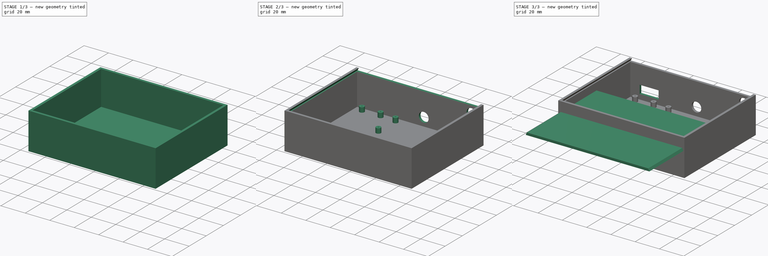
[diagram: build sequence overview — one tinted view per stage of 3, left to right]
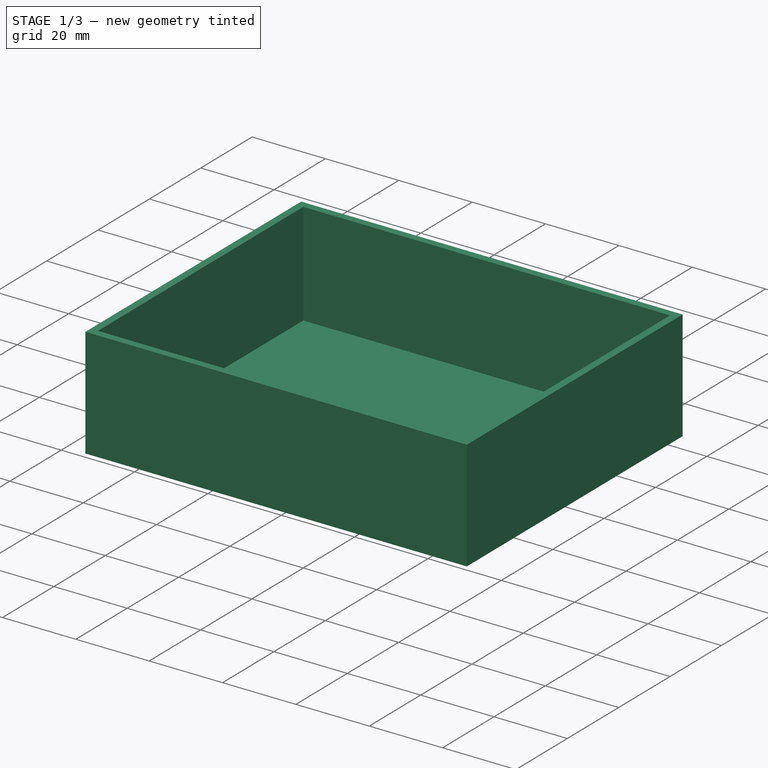
[diagram: stage 1 of 3 — iso view after this stage's code; geometry added in this stage tinted green]
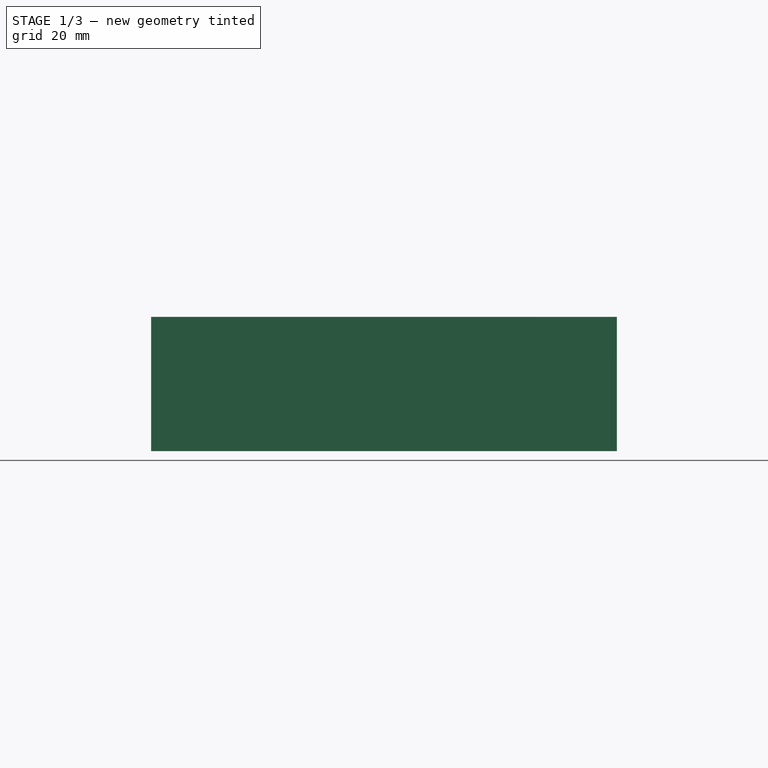
[diagram: stage 1 of 3 — front view after this stage's code; geometry added in this stage tinted green]
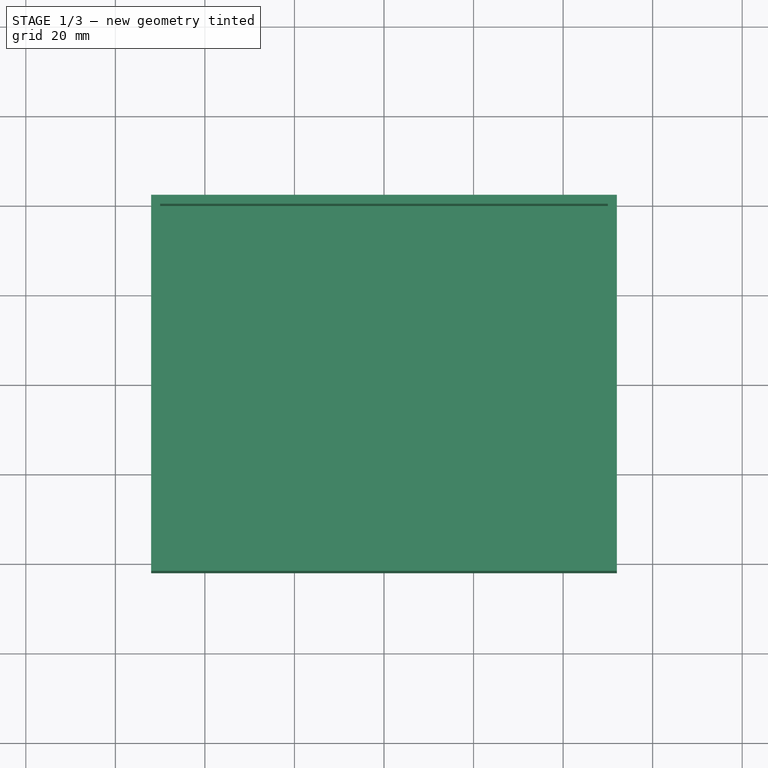
[diagram: stage 1 of 3 — top view after this stage's code; geometry added in this stage tinted green]
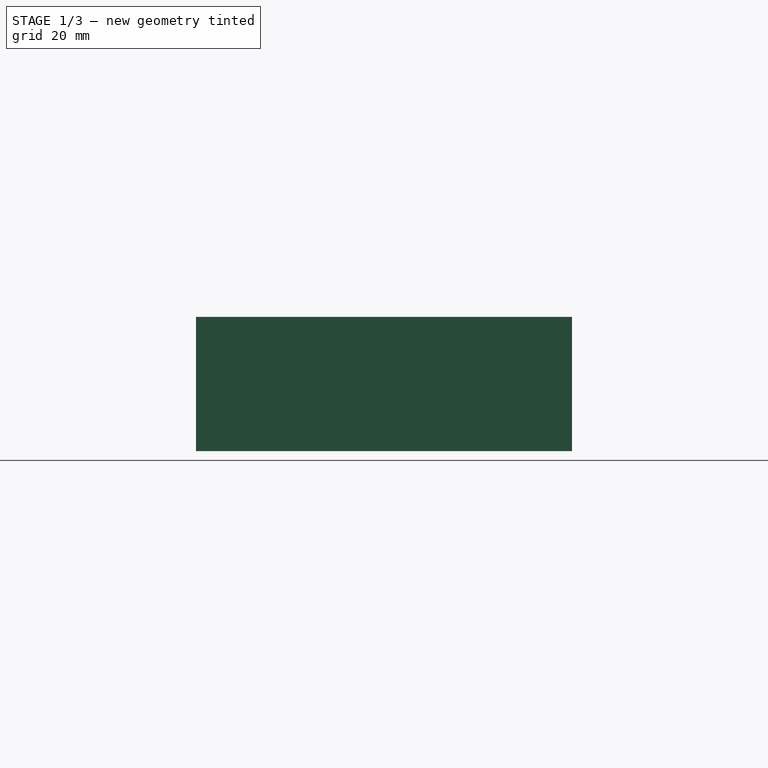
[diagram: stage 1 of 3 — right view after this stage's code; geometry added in this stage tinted green]
FCSTD DOCUMENT  (FreeCAD 0.21R33675 (Git))
Label: sousvide
License: All rights reserved
LicenseURL: https://en.wikipedia.org/wiki/All_rights_reserved
objects: Sketcher::SketchObject×7, PartDesign::Pocket×4, PartDesign::Pad×3, PartDesign::Body×2
note: 23 computed .brp shape members not serialized (recipe doc carries the construction recipe); baked Part::Feature solids carry a one-line shape summary decoded from their .brp

FEATURE [Sketcher::SketchObject] Sketch001
  FullyConstrained = true
  sketch-geometry (6):
    g0: LineSegment StartX=52 StartY=-42 StartZ=0 EndX=52 EndY=42 EndZ=0
    g1: LineSegment StartX=52 StartY=42 StartZ=0 EndX=-52 EndY=42 EndZ=0
    g2: LineSegment StartX=-52 StartY=42 StartZ=0 EndX=-52 EndY=-42 EndZ=0
    g3: LineSegment StartX=-52 StartY=-42 StartZ=0 EndX=52 EndY=-42 EndZ=0
    g4: GeomPoint X=0 Y=0 Z=0
    g5: GeomPoint X=0 Y=0 Z=0
  constraints (13):
    c: Coincident(g0,g1)
    c: Coincident(g1,g2)
    c: Coincident(g2,g3)
    c: Coincident(g3,g0)
    c: Horizontal(g1)
    c: Horizontal(g3)
    c: Vertical(g0)
    c: Vertical(g2)
    c: Symmetric(g1,g0,g4)
    c: Coincident(g4,g-1)
    c: Coincident(g5,g4)
    c: Distance(g1) = 104
    c: Distance(g0) = 84
FEATURE [PartDesign::Pad] Pad001
  Direction = (0,0,1)
  Length = 30
  Length2 = 10
  Profile = -> Sketch001
  ReferenceAxis = -> Sketch001 [N_Axis]
  Type = 0
FEATURE [Sketcher::SketchObject] Sketch
  FullyConstrained = true
  MapMode = 5
  Placement = pos=(0,0,30) rot=(0,0,1;0rad)
  Support = -> [Pad001]
  sketch-geometry (5):
    g0: LineSegment StartX=-50 StartY=-40 StartZ=0 EndX=-50 EndY=40 EndZ=0
    g1: LineSegment StartX=-50 StartY=40 StartZ=0 EndX=50 EndY=40 EndZ=0
    g2: LineSegment StartX=50 StartY=40 StartZ=0 EndX=50 EndY=-40 EndZ=0
    g3: LineSegment StartX=50 StartY=-40 StartZ=0 EndX=-50 EndY=-40 EndZ=0
    g4: GeomPoint X=0 Y=0 Z=0
  constraints (12):
    c: Coincident(g0,g1)
    c: Coincident(g1,g2)
    c: Coincident(g2,g3)
    c: Coincident(g3,g0)
    c: Horizontal(g1)
    c: Horizontal(g3)
    c: Vertical(g0)
    c: Vertical(g2)
    c: Symmetric(g1,g0,g4)
    c: Coincident(g4,g-1)
    c: Distance(g1) = 100
    c: Distance(g2) = 80
FEATURE [PartDesign::Pocket] Pocket
  BaseFeature = -> Pad001
  Direction = (0,0,-1)
  Length = 28
  Length2 = 5
  Profile = -> Sketch
  ReferenceAxis = -> Sketch [N_Axis]
  Type = 0
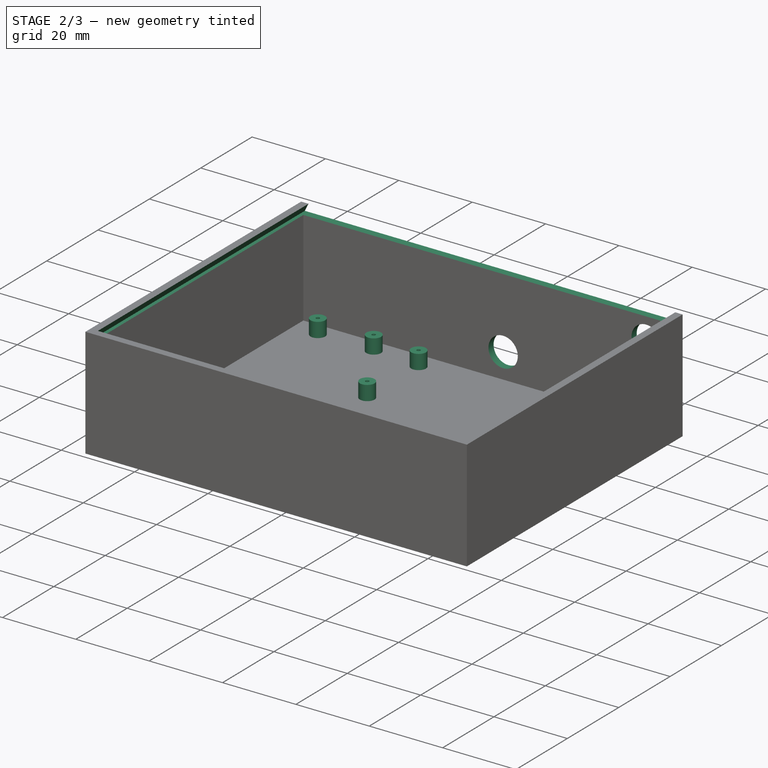
[diagram: stage 2 of 3 — iso view after this stage's code; geometry added in this stage tinted green]
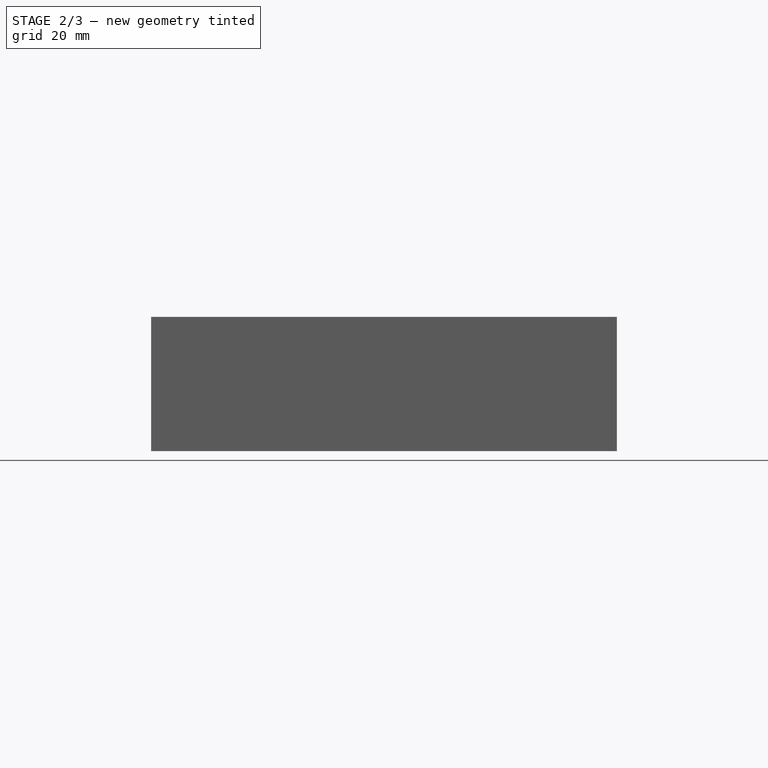
[diagram: stage 2 of 3 — front view after this stage's code; geometry added in this stage tinted green]
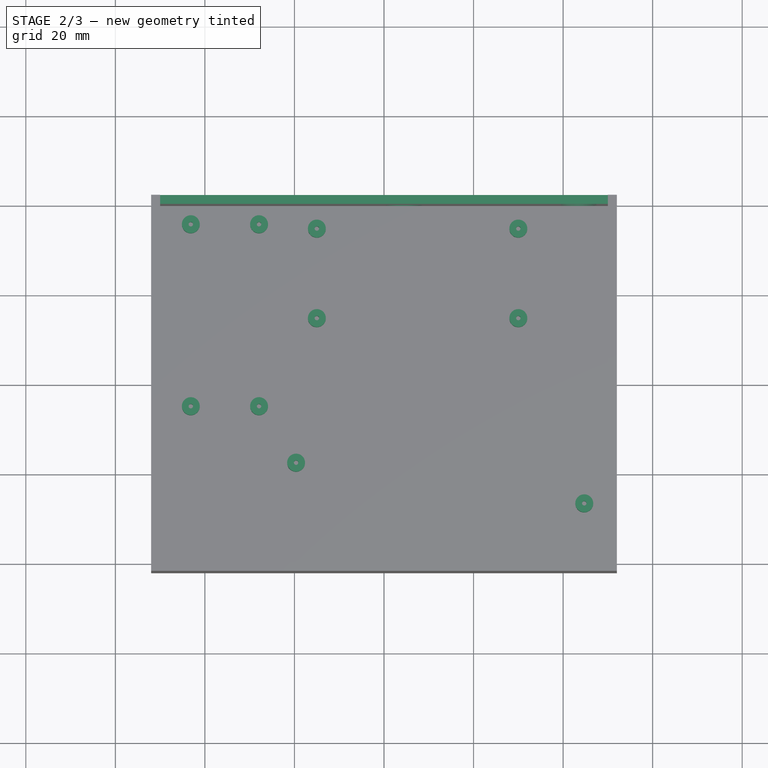
[diagram: stage 2 of 3 — top view after this stage's code; geometry added in this stage tinted green]
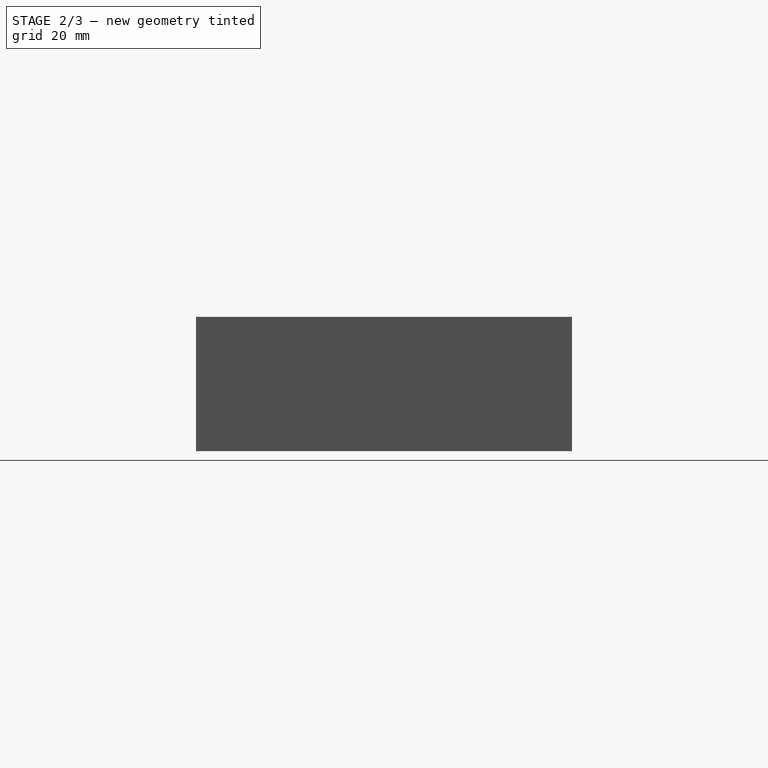
[diagram: stage 2 of 3 — right view after this stage's code; geometry added in this stage tinted green]
FEATURE [Sketcher::SketchObject] Sketch008
  ExternalGeometry = -> [Pocket]
  FullyConstrained = false
  MapMode = 5
  Placement = pos=(0,0,2) rot=(0,0,1;0rad)
  Support = -> [Pocket]
  sketch-geometry (34):
    g0: LineSegment StartX=-15 StartY=34.8884 StartZ=0 EndX=30 EndY=34.8884 EndZ=0
    g1: LineSegment StartX=30 StartY=34.8884 StartZ=0 EndX=30 EndY=14.8884 EndZ=0
    g2: LineSegment StartX=30 StartY=14.8884 StartZ=0 EndX=-15 EndY=14.8884 EndZ=0
    g3: LineSegment StartX=-15 StartY=14.8884 StartZ=0 EndX=-15 EndY=34.8884 EndZ=0
    g4: Circle CenterX=-15 CenterY=34.8884 CenterZ=0 NormalX=0 NormalY=0 NormalZ=1 AngleXU=0 Radius=2
    g5: Circle CenterX=30 CenterY=34.8884 CenterZ=0 NormalX=0 NormalY=0 NormalZ=1 AngleXU=0 Radius=2
    g6: Circle CenterX=30 CenterY=14.8884 CenterZ=0 NormalX=0 NormalY=0 NormalZ=1 AngleXU=0 Radius=2
    g7: Circle CenterX=-15 CenterY=14.8884 CenterZ=0 NormalX=0 NormalY=0 NormalZ=1 AngleXU=0 Radius=2
    g8: Circle CenterX=-15 CenterY=34.8884 CenterZ=0 NormalX=0 NormalY=0 NormalZ=1 AngleXU=0 Radius=0.5
    g9: Circle CenterX=30 CenterY=34.8884 CenterZ=0 NormalX=0 NormalY=0 NormalZ=1 AngleXU=0 Radius=0.5
    g10: Circle CenterX=30 CenterY=14.8884 CenterZ=0 NormalX=0 NormalY=0 NormalZ=1 AngleXU=0 Radius=0.5
    g11: Circle CenterX=-15 CenterY=14.8884 CenterZ=0 NormalX=0 NormalY=0 NormalZ=1 AngleXU=0 Radius=0.5
    g12: LineSegment StartX=-43.15 StartY=35.8562 StartZ=0 EndX=-27.91 EndY=35.8562 EndZ=0
    g13: LineSegment StartX=-27.91 StartY=35.8562 StartZ=0 EndX=-27.91 EndY=-4.7838 EndZ=0
    g14: LineSegment StartX=-27.91 StartY=-4.7838 StartZ=0 EndX=-43.15 EndY=-4.7838 EndZ=0
    g15: LineSegment StartX=-43.15 StartY=-4.7838 StartZ=0 EndX=-43.15 EndY=35.8562 EndZ=0
    g16: Circle CenterX=-43.15 CenterY=35.8562 CenterZ=0 NormalX=0 NormalY=0 NormalZ=1 AngleXU=0 Radius=2
    g17: Circle CenterX=-27.91 CenterY=35.8562 CenterZ=0 NormalX=0 NormalY=0 NormalZ=1 AngleXU=0 Radius=2
    g18: Circle CenterX=-27.91 CenterY=-4.7838 CenterZ=0 NormalX=0 NormalY=0 NormalZ=1 AngleXU=0 Radius=2
    g19: Circle CenterX=-43.15 CenterY=-4.7838 CenterZ=0 NormalX=0 NormalY=0 NormalZ=1 AngleXU=0 Radius=2
    g20: Circle CenterX=-27.91 CenterY=35.8562 CenterZ=0 NormalX=0 NormalY=0 NormalZ=1 AngleXU=0 Radius=0.5
    g21: Circle CenterX=-27.91 CenterY=-4.7838 CenterZ=0 NormalX=0 NormalY=0 NormalZ=1 AngleXU=0 Radius=0.5
    g22: Circle CenterX=-43.15 CenterY=-4.7838 CenterZ=0 NormalX=0 NormalY=0 NormalZ=1 AngleXU=0 Radius=0.5
    g23: Circle CenterX=-43.15 CenterY=35.8562 CenterZ=0 NormalX=0 NormalY=0 NormalZ=1 AngleXU=0 Radius=0.5
    g24: LineSegment StartX=-19.6351 StartY=-7.25325 StartZ=0 EndX=44.7275 EndY=-7.25325 EndZ=0
    g25: LineSegment StartX=44.7275 StartY=-7.25325 StartZ=0 EndX=44.7275 EndY=-37.2533 EndZ=0
    g26: LineSegment StartX=44.7275 StartY=-37.2533 StartZ=0 EndX=-19.6351 EndY=-37.2533 EndZ=0
    g27: LineSegment StartX=-19.6351 StartY=-37.2533 StartZ=0 EndX=-19.6351 EndY=-7.25325 EndZ=0
    g28: LineSegment StartX=30 StartY=25.1855 StartZ=0 EndX=50 EndY=25.1855 EndZ=0
    g29: LineSegment StartX=44.7275 StartY=-26.483 StartZ=0 EndX=-19.6351 EndY=-17.4023 EndZ=0
    g30: Circle CenterX=-19.6351 CenterY=-17.4023 CenterZ=0 NormalX=0 NormalY=0 NormalZ=1 AngleXU=0 Radius=2
    g31: Circle CenterX=-19.6351 CenterY=-17.4023 CenterZ=0 NormalX=0 NormalY=0 NormalZ=1 AngleXU=0 Radius=0.5
    g32: Circle CenterX=44.7275 CenterY=-26.483 CenterZ=0 NormalX=0 NormalY=0 NormalZ=1 AngleXU=0 Radius=2
    g33: Circle CenterX=44.7275 CenterY=-26.483 CenterZ=0 NormalX=0 NormalY=0 NormalZ=1 AngleXU=0 Radius=0.5
  constraints (69):
    c: Coincident(g0,g1)
    c: Coincident(g1,g2)
    c: Coincident(g2,g3)
    c: Coincident(g3,g0)
    c: Horizontal(g0)
    c: Horizontal(g2)
    c: Vertical(g1)
    c: Vertical(g3)
    c: Distance(g0) = 45
    c: Distance(g3) = 20
    c: Coincident(g4,g0)
    c: Coincident(g5,g0)
    c: Coincident(g6,g1)
    c: Coincident(g7,g2)
    c: Equal(g6,g5)
    c: Coincident(g8,g4)
    c: Coincident(g9,g5)
    c: Coincident(g10,g6)
    c: Coincident(g11,g7)
    c: Equal(g9,g8)
    c: Equal(g9,g10)
    c: Equal(g11,g10)
    c: Coincident(g12,g13)
    c: Coincident(g13,g14)
    c: Coincident(g14,g15)
    c: Coincident(g15,g12)
    c: Horizontal(g12)
    c: Horizontal(g14)
    c: Vertical(g13)
    c: Vertical(g15)
    c: Distance(g12) = 15.24
    c: Distance(g13) = 40.64
    c: Coincident(g17,g12)
    c: Coincident(g18,g13)
    c: Coincident(g19,g14)
    c: Equal(g17,g18)
    c: Equal(g17,g16)
    c: Equal(g17,g19)
    c: Coincident(g20,g17)
    c: Coincident(g21,g18)
    c: Coincident(g22,g19)
    c: Equal(g22,g20)
    c: Equal(g22,g21)
    c: Coincident(g16,g12)
    c: Coincident(g23,g16)
    c: Coincident(g24,g25)
    c: Coincident(g25,g26)
    c: Coincident(g26,g27)
    c: Coincident(g27,g24)
    c: Horizontal(g24)
    c: Horizontal(g26)
    c: Vertical(g25)
    c: Vertical(g27)
    c: Distance(g27) = 30
    c: PointOnObject(g28,g1)
    c: PointOnObject(g28,g-3)
    c: Horizontal(g28)
    c: Distance(g28) = 20
    c: PointOnObject(g29,g25)
    c: PointOnObject(g29,g27)
    c: Distance(g29) = 65
    c: Coincident(g30,g29)
    c: Coincident(g31,g30)
    c: Coincident(g32,g29)
    c: Coincident(g33,g32)
    c: Equal(g32,g30)
    c: Radius(g32) = 2
    c: Equal(g31,g33)
    c: Radius(g31) = 0.5
FEATURE [PartDesign::Pad] Pad002
  BaseFeature = -> Pocket
  Direction = (0,0,1)
  Length = 4
  Length2 = 10
  Profile = -> Sketch008
  ReferenceAxis = -> Sketch008 [N_Axis]
  Type = 0
FEATURE [Sketcher::SketchObject] Sketch009
  FullyConstrained = false
  MapMode = 5
  Placement = pos=(0,42,0) rot=(0,0.707107,0.707107;3.14159rad)
  Support = -> [Pad002]
  sketch-geometry (5):
    g0: Circle CenterX=-43.4844 CenterY=8.81427 CenterZ=0 NormalX=0 NormalY=0 NormalZ=1 AngleXU=0 Radius=4
    g1: Circle CenterX=-4.4691 CenterY=8.81427 CenterZ=0 NormalX=0 NormalY=0 NormalZ=1 AngleXU=0 Radius=4
    g2: LineSegment StartX=-43.4844 StartY=8.81427 StartZ=0 EndX=-4.4691 EndY=8.81427 EndZ=0
    g3: LineSegment StartX=-43.4844 StartY=8.81427 StartZ=0 EndX=-43.4844 EndY=21.9859 EndZ=0
    g4: Circle CenterX=-43.4844 CenterY=21.9859 CenterZ=0 NormalX=0 NormalY=0 NormalZ=1 AngleXU=0 Radius=4
  constraints (9):
    c: Radius(g0) = 4
    c: Radius(g1) = 4
    c: Coincident(g2,g0)
    c: Coincident(g2,g1)
    c: Horizontal(g2)
    c: Coincident(g3,g0)
    c: Vertical(g3)
    c: Coincident(g4,g3)
    c: Radius(g4) = 4
FEATURE [PartDesign::Pocket] Pocket003
  BaseFeature = -> Pad002
  Direction = (0,-1,2e-16)
  Length = 5
  Length2 = 5
  Profile = -> Sketch009
  ReferenceAxis = -> Sketch009 [N_Axis]
  Type = 0
FEATURE [Sketcher::SketchObject] Sketch010
  ExternalGeometry = -> [Pocket003]
  FullyConstrained = true
  MapMode = 5
  Placement = pos=(0,42,0) rot=(0,0.707107,0.707107;3.14159rad)
  Support = -> [Pocket003]
  sketch-geometry (7):
    g0: LineSegment StartX=-50 StartY=30 StartZ=0 EndX=-51 EndY=28 EndZ=0
    g1: LineSegment StartX=-51 StartY=28 StartZ=0 EndX=51 EndY=28 EndZ=0
    g2: LineSegment StartX=51 StartY=28 StartZ=0 EndX=50 EndY=30 EndZ=0
    g3: LineSegment StartX=50 StartY=30 StartZ=0 EndX=-50 EndY=30 EndZ=0
    g4: GeomPoint X=0 Y=30 Z=0
    g5: GeomPoint X=0 Y=28 Z=0
    g6: LineSegment StartX=0 StartY=28 StartZ=0 EndX=0 EndY=30 EndZ=0
  constraints (14):
    c: Coincident(g0,g1)
    c: Horizontal(g1)
    c: Coincident(g1,g2)
    c: Coincident(g2,g3)
    c: Coincident(g3,g0)
    c: Coincident(g0,g-3)
    c: Coincident(g2,g-3)
    c: Symmetric(g3,g3,g4)
    c: Symmetric(g1,g1,g5)
    c: Coincident(g6,g5)
    c: Coincident(g6,g4)
    c: Vertical(g6)
    c: Distance(g6) = 2
    c: Distance(g1) = 102
FEATURE [PartDesign::Pocket] Pocket004
  BaseFeature = -> Pocket003
  Direction = (0,-1,2e-16)
  Length = 82
  Length2 = 5
  Profile = -> Sketch010
  ReferenceAxis = -> Sketch010 [N_Axis]
  Type = 0
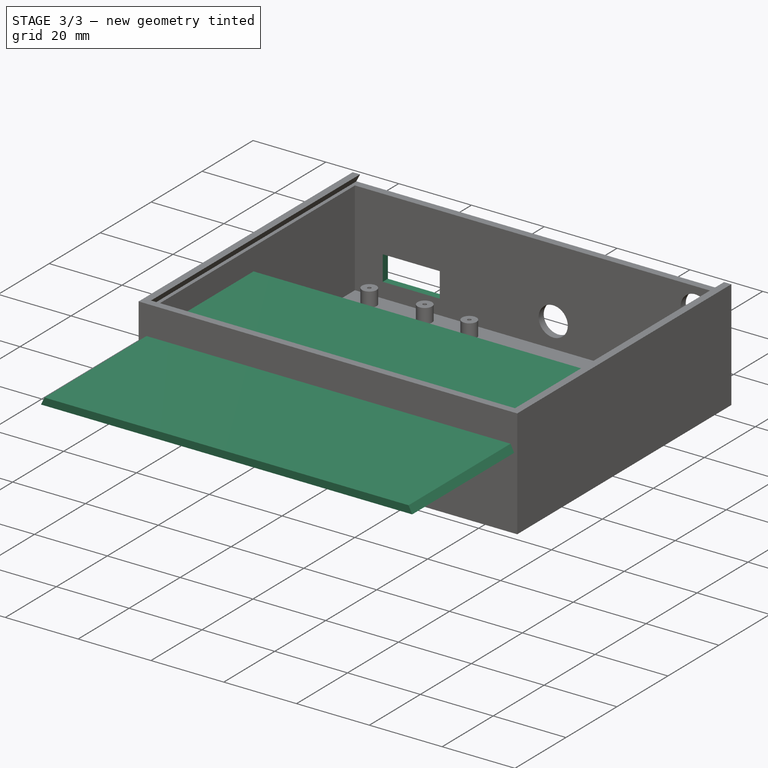
[diagram: stage 3 of 3 — iso view after this stage's code; geometry added in this stage tinted green]
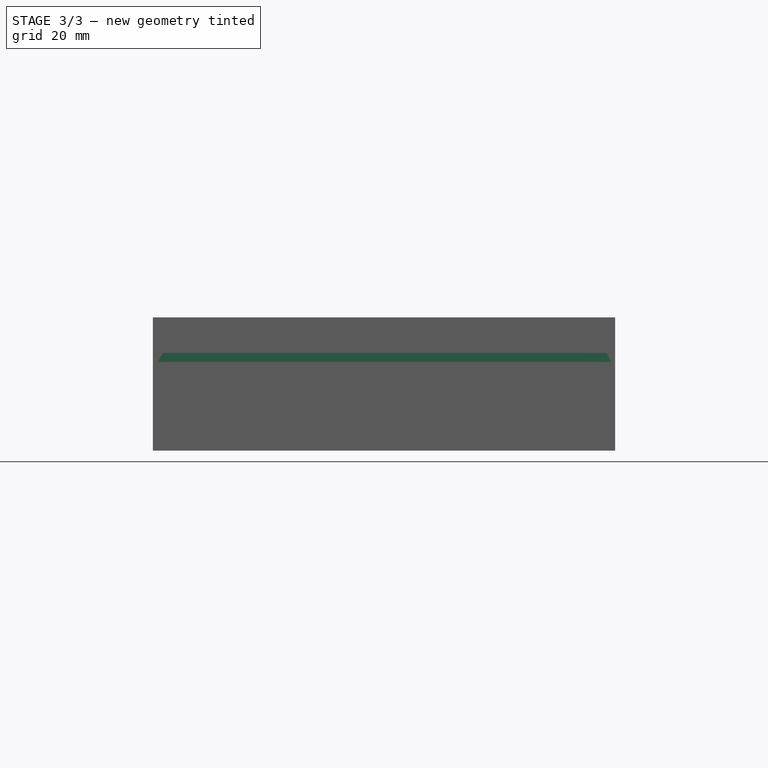
[diagram: stage 3 of 3 — front view after this stage's code; geometry added in this stage tinted green]
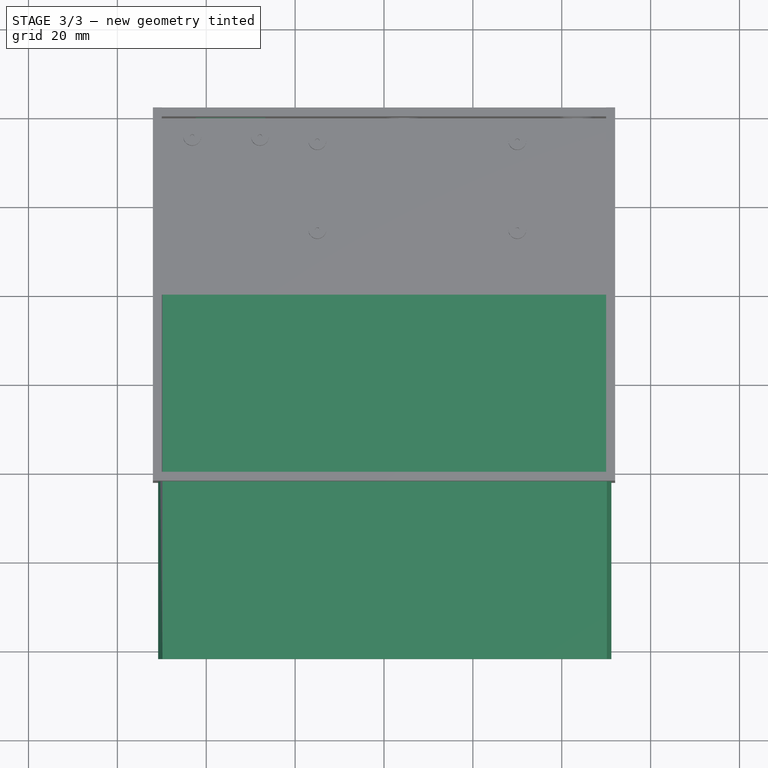
[diagram: stage 3 of 3 — top view after this stage's code; geometry added in this stage tinted green]
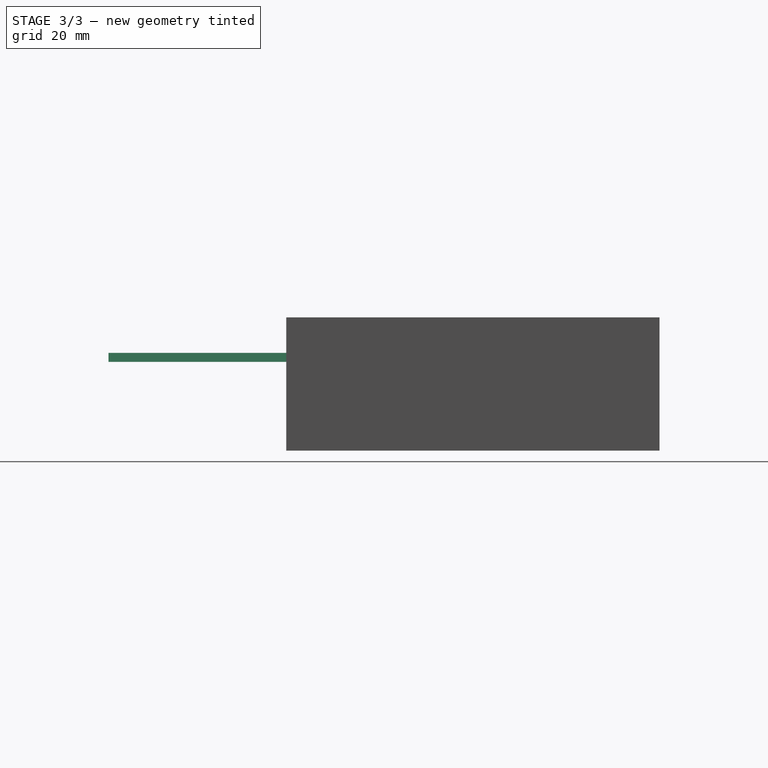
[diagram: stage 3 of 3 — right view after this stage's code; geometry added in this stage tinted green]
FEATURE [Sketcher::SketchObject] Sketch011
  FullyConstrained = false
  MapMode = 5
  Placement = pos=(0,0,0) rot=(1,0,0;1.5708rad)
  Support = -> [XZ_Plane001]
  sketch-geometry (7):
    g0: LineSegment StartX=-49.8416 StartY=21.9912 StartZ=0 EndX=-50.8416 EndY=19.9912 EndZ=0
    g1: LineSegment StartX=-50.8416 StartY=19.9912 StartZ=0 EndX=51.1584 EndY=19.9912 EndZ=0
    g2: LineSegment StartX=51.1584 StartY=19.9912 StartZ=0 EndX=50.1584 EndY=21.9912 EndZ=0
    g3: LineSegment StartX=50.1584 StartY=21.9912 StartZ=0 EndX=-49.8416 EndY=21.9912 EndZ=0
    g4: GeomPoint X=0.158408 Y=21.9912 Z=0
    g5: GeomPoint X=0.158408 Y=19.9912 Z=0
    g6: LineSegment StartX=0.158408 StartY=21.9912 StartZ=0 EndX=0.158408 EndY=19.9912 EndZ=0
  constraints (14):
    c: Coincident(g0,g1)
    c: Horizontal(g1)
    c: Coincident(g1,g2)
    c: Coincident(g2,g3)
    c: Coincident(g3,g0)
    c: Horizontal(g3)
    c: Distance(g3) = 100
    c: Distance(g1) = 102
    c: Symmetric(g3,g3,g4)
    c: Symmetric(g1,g1,g5)
    c: Coincident(g6,g4)
    c: Coincident(g6,g5)
    c: Distance(g6) = 2
    c: Vertical(g6)
FEATURE [PartDesign::Pad] Pad
  Direction = (0,-1,-2e-16)
  Length = 82
  Length2 = 10
  Placement = pos=(0,0,0) rot=(1,0,0;1.5708rad)
  Profile = -> Sketch011
  ReferenceAxis = -> Sketch011 [N_Axis]
  Type = 0
FEATURE [PartDesign::Body] Body001
  Group = -> [Sketch011,Pad]
  Origin = -> Origin001
  Placement = pos=(0,41,8) rot=(0,0,1;0rad)
  Tip = -> Pad
FEATURE [Sketcher::SketchObject] Sketch012
  FullyConstrained = false
  MapMode = 5
  Placement = pos=(0,42,0) rot=(0,0.707107,0.707107;3.14159rad)
  Support = -> [Pocket004]
  sketch-geometry (4):
    g0: LineSegment StartX=26.691 StartY=12.9651 StartZ=0 EndX=42.3566 EndY=12.9651 EndZ=0
    g1: LineSegment StartX=42.3566 StartY=12.9651 StartZ=0 EndX=42.3566 EndY=6.12698 EndZ=0
    g2: LineSegment StartX=42.3566 StartY=6.12698 StartZ=0 EndX=26.691 EndY=6.12698 EndZ=0
    g3: LineSegment StartX=26.691 StartY=6.12698 StartZ=0 EndX=26.691 EndY=12.9651 EndZ=0
  constraints (8):
    c: Coincident(g0,g1)
    c: Coincident(g1,g2)
    c: Coincident(g2,g3)
    c: Coincident(g3,g0)
    c: Horizontal(g0)
    c: Horizontal(g2)
    c: Vertical(g1)
    c: Vertical(g3)
FEATURE [PartDesign::Pocket] Pocket005
  BaseFeature = -> Pocket004
  Direction = (0,-1,2e-16)
  Length = 5
  Length2 = 5
  Profile = -> Sketch012
  ReferenceAxis = -> Sketch012 [N_Axis]
  Type = 0
FEATURE [PartDesign::Body] Body
  Group = -> [Sketch001,Pad001,Sketch,Pocket,Sketch008,Pad002,Sketch009,Pocket003,Sketch010,Pocket004,Sketch012,Pocket005]
  Origin = -> Origin
  Tip = -> Pocket005
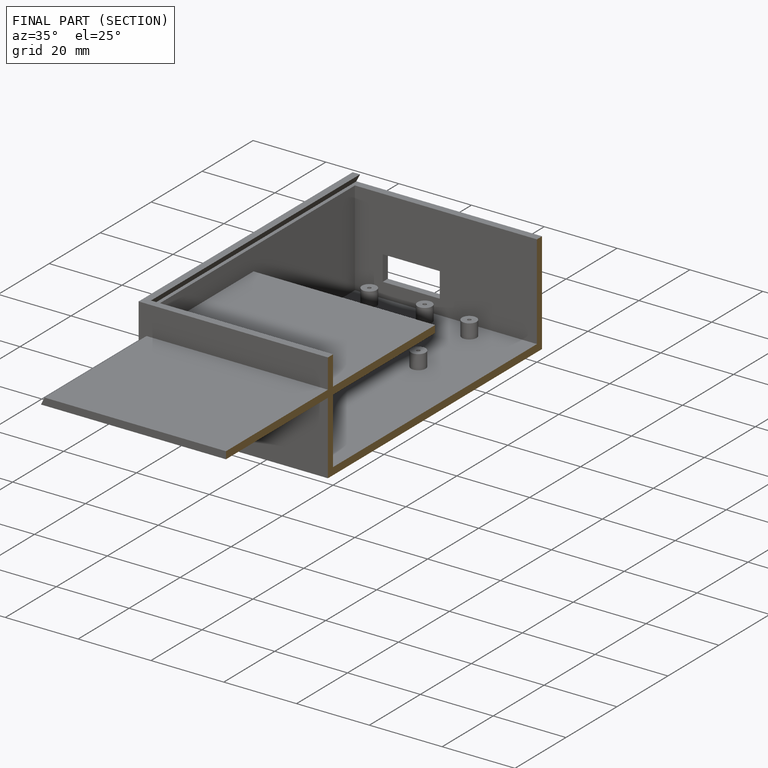
[diagram: finished part — half-section view (interior)]
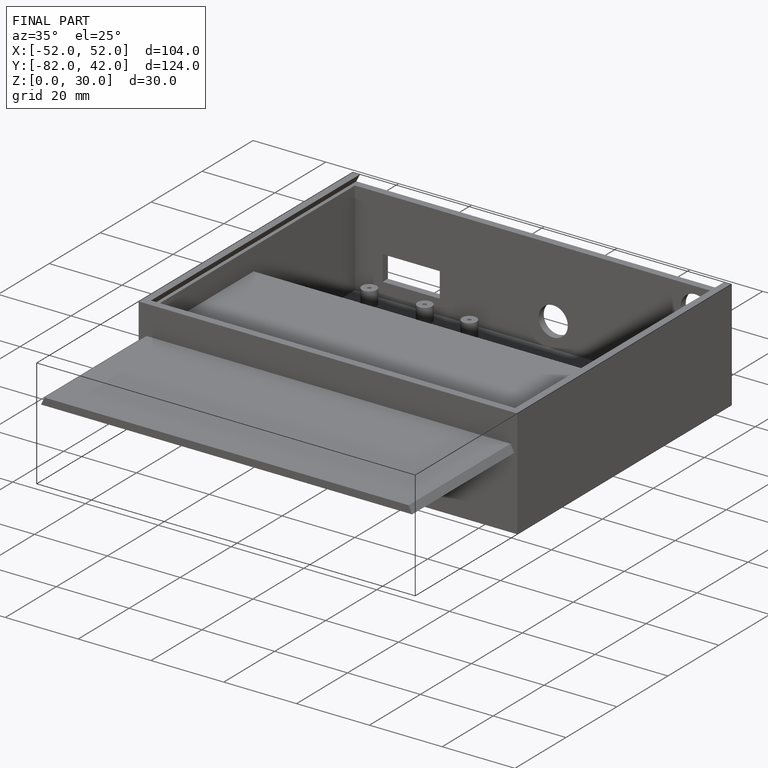
[diagram: finished part — iso view with bounding-box wireframe]
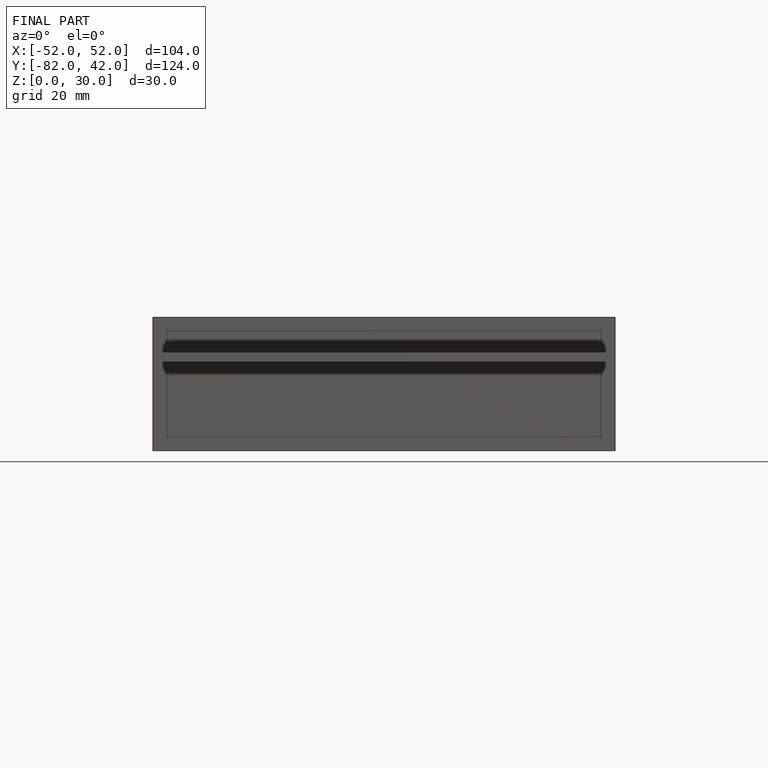
[diagram: finished part — front view with bounding-box wireframe]
